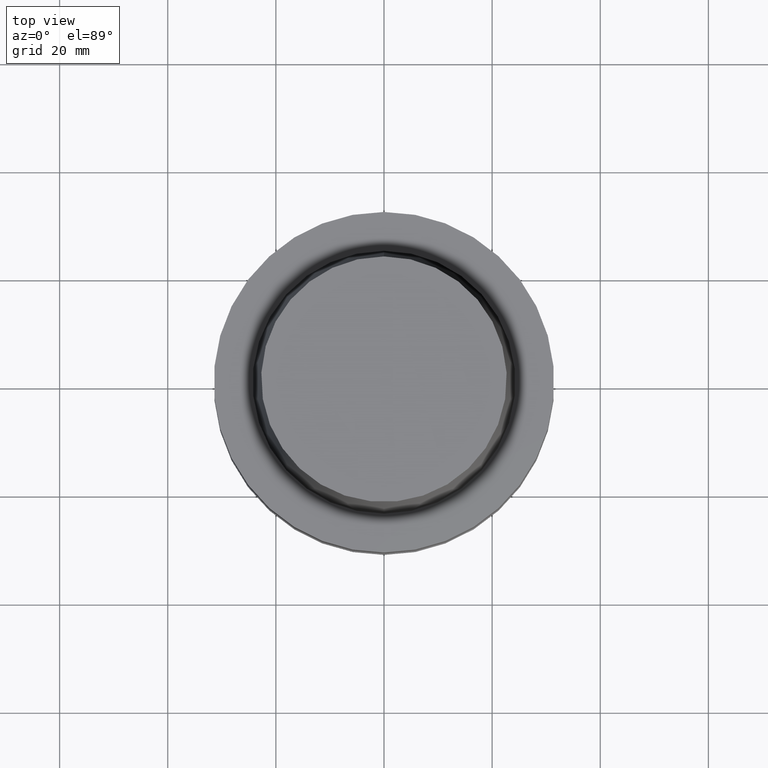
[diagram: clean part render]
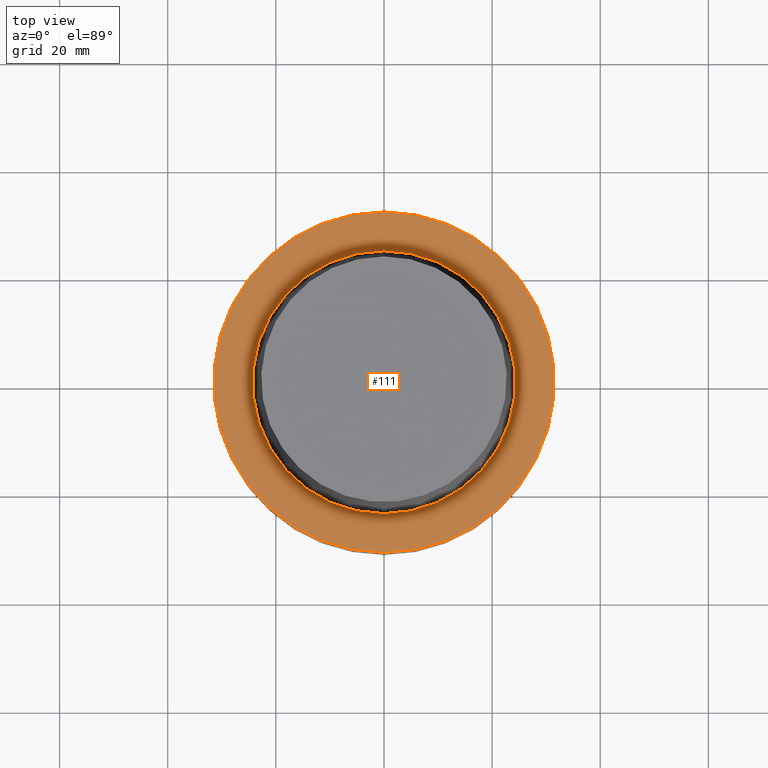
[diagram: same view with one face highlighted and labeled with its STEP entity id]
A machine part, top view. The second image highlights one B-rep face of the part: STEP entity #111.
In plain terms, the highlighted planar face has unit normal (-0, -0, 1).
Its self-contained STEP definition (entity closure, byte-faithful):
#83=EDGE_CURVE('Unnamed[1]',#225,#225,#226,.T.);
#105=EDGE_CURVE('Unnamed[1]',#258,#258,#259,.T.);
#111=ADVANCED_FACE('Unnamed[1]',(#267,#268),#269,.T.);
#225=VERTEX_POINT('',#426);
#226=CIRCLE('',#427,24.315);
#258=VERTEX_POINT('',#467);
#259=CIRCLE('',#468,31.5000000000001);
#267=FACE_BOUND('',#478,.T.);
#268=FACE_OUTER_BOUND('',#479,.T.);
#269=PLANE('',#480);
#426=CARTESIAN_POINT('',(-2.99705514225764E-031,24.315,2.97772869212679E-015));
#427=AXIS2_PLACEMENT_3D('',#658,#659,#660);
#467=CARTESIAN_POINT('',(-3.88267476788467E-031,31.5000000000001,3.85763741731417E-015));
#468=AXIS2_PLACEMENT_3D('',#692,#693,#694);
#478=EDGE_LOOP('',(#702));
#479=EDGE_LOOP('',(#703));
#480=AXIS2_PLACEMENT_3D('',#704,#705,#706);
#658=CARTESIAN_POINT('',(0.0,0.0,0.0));
#659=DIRECTION('',(-6.12323399573677E-017,-1.22464679914735E-016,1.0));
#660=DIRECTION('',(-1.23259516440783E-032,1.0,1.22464679914735E-016));
#692=CARTESIAN_POINT('',(0.0,0.0,0.0));
#693=DIRECTION('',(-6.12323399573677E-017,-1.22464679914735E-016,1.0));
#694=DIRECTION('',(-1.23259516440783E-032,1.0,1.22464679914735E-016));
#702=ORIENTED_EDGE('',*,*,#83,.F.);
#703=ORIENTED_EDGE('',*,*,#105,.T.);
#704=CARTESIAN_POINT('',(-3.43986495507116E-031,27.9075,3.41768305472048E-015));
#705=DIRECTION('',(-6.12323399573677E-017,-1.22464679914735E-016,1.0));
#706=DIRECTION('',(-1.23259516440783E-032,1.0,1.22464679914735E-016));